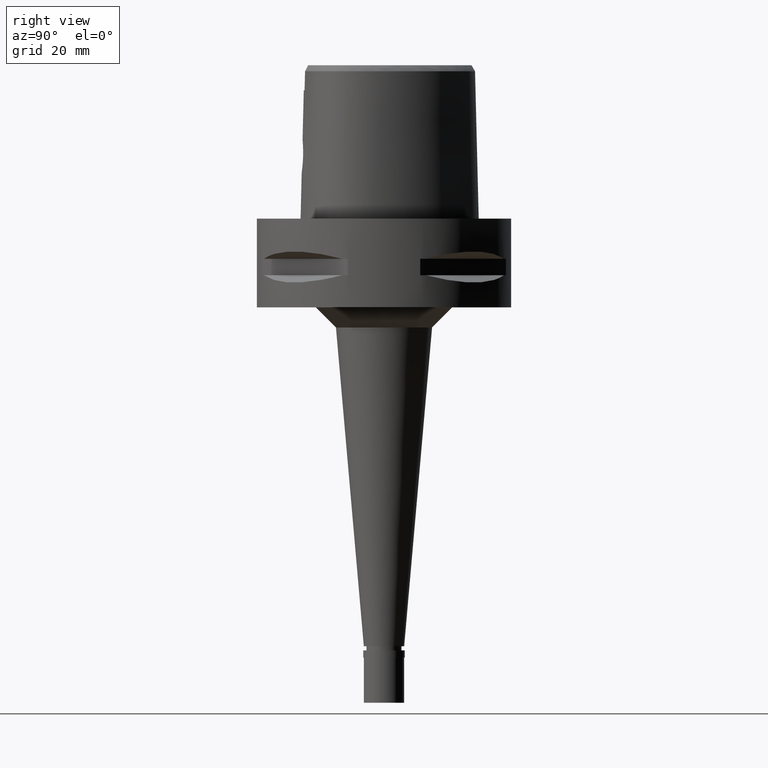
[diagram: clean part render]
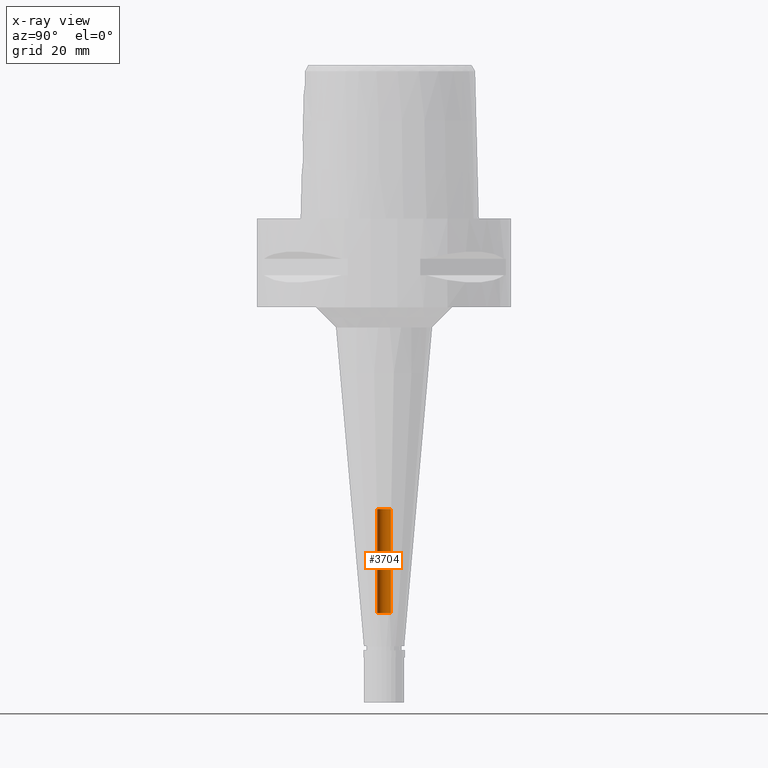
[diagram: x-ray — body ghosted, one internal face saturated and labeled with its STEP entity id]
A machine part, right view, then the same camera in x-ray: the body is ghosted and one INTERNAL B-rep face — a face not visible from any outside direction — is saturated and labeled: STEP entity #3704.
In plain terms, the highlighted cylindrical surface (edge-blend (fillet) strip) has radius 1.7 mm, axis along (0, 0, -1).
Its self-contained STEP definition (entity closure, byte-faithful):
#280 = DIRECTION ( 'NONE',  ( 0.0000000000000000000, -1.000000000000000000, 0.0000000000000000000 ) ) ;
#337 = AXIS2_PLACEMENT_3D ( 'NONE', #2063, #4780, #280 ) ;
#524 = DIRECTION ( 'NONE',  ( 0.0000000000000000000, 1.000000000000000000, 0.0000000000000000000 ) ) ;
#870 = FACE_OUTER_BOUND ( 'NONE', #2189, .T. ) ;
#917 = CYLINDRICAL_SURFACE ( 'NONE', #3380, 1.699999999999999956 ) ;
#1013 = VERTEX_POINT ( 'NONE', #4176 ) ;
#1146 = DIRECTION ( 'NONE',  ( 0.0000000000000000000, 0.0000000000000000000, 1.000000000000000000 ) ) ;
#1265 = DIRECTION ( 'NONE',  ( 0.0000000000000000000, -1.000000000000000000, 0.0000000000000000000 ) ) ;
#1343 = DIRECTION ( 'NONE',  ( 0.0000000000000000000, 0.0000000000000000000, -1.000000000000000000 ) ) ;
#1452 = ORIENTED_EDGE ( 'NONE', *, *, #2517, .T. ) ;
#1600 = VECTOR ( 'NONE', #1146, 1000.000000000000000 ) ;
#1620 = CARTESIAN_POINT ( 'NONE',  ( 0.0000000000000000000, -1.699999999999999956, -97.79999999999999716 ) ) ;
#1845 = ORIENTED_EDGE ( 'NONE', *, *, #2061, .T. ) ;
#2043 = CARTESIAN_POINT ( 'NONE',  ( 0.0000000000000000000, 1.699999999999999956, -72.00000000000000000 ) ) ;
#2061 = EDGE_CURVE ( 'NONE', #3933, #1013, #2322, .T. ) ;
#2063 = CARTESIAN_POINT ( 'NONE',  ( 0.0000000000000000000, 1.295860010517999870E-14, -97.79999999999999716 ) ) ;
#2184 = CARTESIAN_POINT ( 'NONE',  ( 0.0000000000000000000, -1.699999999999999956, -72.00000000000000000 ) ) ;
#2189 = EDGE_LOOP ( 'NONE', ( #3571, #3442, #1845, #1452 ) ) ;
#2293 = LINE ( 'NONE', #1620, #1600 ) ;
#2322 = CIRCLE ( 'NONE', #337, 1.699999999999999956 ) ;
#2388 = DIRECTION ( 'NONE',  ( 0.0000000000000000000, 0.0000000000000000000, 1.000000000000000000 ) ) ;
#2517 = EDGE_CURVE ( 'NONE', #1013, #2875, #2602, .T. ) ;
#2536 = VERTEX_POINT ( 'NONE', #2184 ) ;
#2602 = LINE ( 'NONE', #4467, #4900 ) ;
#2761 = CARTESIAN_POINT ( 'NONE',  ( 0.0000000000000000000, 1.295860010517999870E-14, 5.814999999999999503 ) ) ;
#2875 = VERTEX_POINT ( 'NONE', #2043 ) ;
#3380 = AXIS2_PLACEMENT_3D ( 'NONE', #2761, #1343, #1265 ) ;
#3442 = ORIENTED_EDGE ( 'NONE', *, *, #3630, .F. ) ;
#3571 = ORIENTED_EDGE ( 'NONE', *, *, #3712, .T. ) ;
#3630 = EDGE_CURVE ( 'NONE', #3933, #2536, #2293, .T. ) ;
#3700 = CARTESIAN_POINT ( 'NONE',  ( 0.0000000000000000000, -1.699999999999999956, -97.79999999999999716 ) ) ;
#3704 = ADVANCED_FACE ( 'NONE', ( #870 ), #917, .F. ) ;
#3712 = EDGE_CURVE ( 'NONE', #2875, #2536, #4830, .T. ) ;
#3933 = VERTEX_POINT ( 'NONE', #3700 ) ;
#4165 = AXIS2_PLACEMENT_3D ( 'NONE', #4783, #2388, #524 ) ;
#4176 = CARTESIAN_POINT ( 'NONE',  ( 0.0000000000000000000, 1.699999999999999956, -97.79999999999999716 ) ) ;
#4185 = DIRECTION ( 'NONE',  ( 0.0000000000000000000, 0.0000000000000000000, 1.000000000000000000 ) ) ;
#4467 = CARTESIAN_POINT ( 'NONE',  ( 0.0000000000000000000, 1.699999999999999956, -97.79999999999999716 ) ) ;
#4780 = DIRECTION ( 'NONE',  ( 0.0000000000000000000, 0.0000000000000000000, -1.000000000000000000 ) ) ;
#4783 = CARTESIAN_POINT ( 'NONE',  ( 0.0000000000000000000, 1.295860010517999870E-14, -72.00000000000000000 ) ) ;
#4830 = CIRCLE ( 'NONE', #4165, 1.699999999999999956 ) ;
#4900 = VECTOR ( 'NONE', #4185, 1000.000000000000000 ) ;